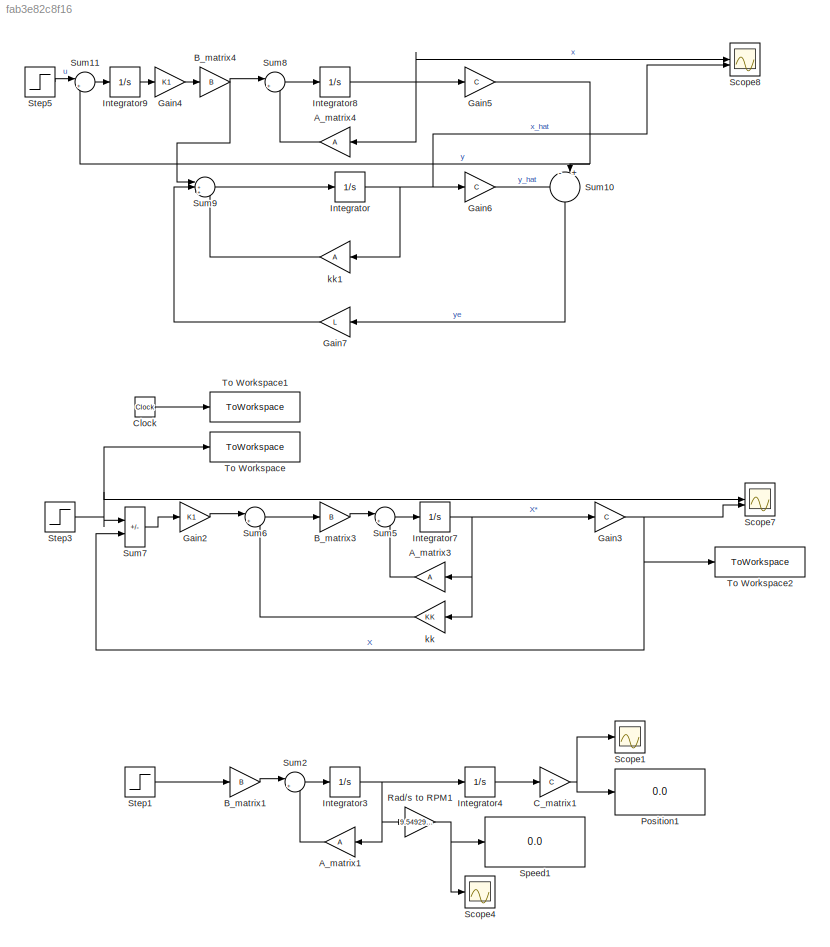
MODEL slx_fab3e82c8f16
KIND model
CONFIG AbsTol = auto
CONFIG EnableMultiTasking = off
CONFIG FixedStep = auto
CONFIG MaxStep = auto
CONFIG MinStep = auto
CONFIG RelTol = 1e-3
CONFIG SampleTimeConstraint = Unconstrained
CONFIG SolverName = VariableStepAuto
CONFIG StartTime = 0.0
CONFIG StopTime = 5
BLOCK [Gain] A_matrix1
  Gain = A
  Multiplication = Matrix(K*u)
  NameLocation = top
BLOCK [Gain] A_matrix3
  Gain = A
  Multiplication = Matrix(K*u)
  NameLocation = top
BLOCK [Gain] A_matrix4
  Gain = A
  Multiplication = Matrix(K*u)
  NameLocation = top
BLOCK [Gain] B_matrix1
  Gain = B
  Multiplication = Matrix(K*u)
BLOCK [Gain] B_matrix3
  Gain = B
  Multiplication = Matrix(K*u)
BLOCK [Gain] B_matrix4
  Gain = B
  Multiplication = Matrix(K*u)
BLOCK [Gain] C_matrix1
  Gain = C
  Multiplication = Matrix(K*u)
BLOCK [Clock] Clock
BLOCK [Gain] Gain2
  Gain = K1
BLOCK [Gain] Gain3
  Gain = C
  Multiplication = Matrix(K*u)
BLOCK [Gain] Gain4
  Gain = K1
  Multiplication = Matrix(K*u) (u vector)
BLOCK [Gain] Gain5
  Gain = C
  Multiplication = Matrix(K*u)
BLOCK [Gain] Gain6
  Gain = C
  Multiplication = Matrix(K*u)
BLOCK [Gain] Gain7
  Gain = L
  Multiplication = Matrix(K*u)
  NameLocation = top
BLOCK [Integrator] Integrator
BLOCK [Integrator] Integrator3
BLOCK [Integrator] Integrator4
BLOCK [Integrator] Integrator7
BLOCK [Integrator] Integrator8
  InitialCondition = 10
BLOCK [Integrator] Integrator9
BLOCK [Display] Position1
  Decimation = 1
BLOCK [Gain] Rad//s to RPM1
  Gain = 9.5492968
BLOCK [Scope] Scope1
  Floating = off
  NumInputPorts = 1
  ScopeSpecificationString = Simulink.scopes.TimeScopeBlockCfg('CurrentConfiguration', extmgr.ConfigurationSet(extmgr.Configuration('Core','General UI',true),extmgr.Configuration('Core','Source UI',true),extmgr.Configuration('Sources','WiredSimulink',true,'DataLoggingVariableName','ScopeData3'),extmgr.Configuration('Visuals','Time Domain',true,'SerializedDisplays',{struct('MinYLimReal','-79.11746','MaxYLimReal','712.05718','Y...<+1394ch>
BLOCK [Scope] Scope4
  Floating = off
  NumInputPorts = 1
  ScopeSpecificationString = Simulink.scopes.TimeScopeBlockCfg('CurrentConfiguration', extmgr.ConfigurationSet(extmgr.Configuration('Core','General UI',true,'FigureColor',[1 1 1]),extmgr.Configuration('Core','Source UI',true),extmgr.Configuration('Sources','WiredSimulink',true,'DataLoggingVariableName','ScopeData4'),extmgr.Configuration('Visuals','Time Domain',true,'SerializedDisplays',{struct('MinYLimReal','-759.23291','MaxY...<+1684ch>
BLOCK [Scope] Scope7
  Floating = off
  NumInputPorts = 2
  ScopeSpecificationString = Simulink.scopes.TimeScopeBlockCfg('CurrentConfiguration', extmgr.ConfigurationSet(extmgr.Configuration('Core','General UI',true,'FigureColor',[1 1 1]),extmgr.Configuration('Core','Source UI',true),extmgr.Configuration('Sources','WiredSimulink',true,'DataLoggingVariableName','ScopeData1'),extmgr.Configuration('Visuals','Time Domain',true,'SerializedDisplays',{struct('MinYLimReal','-2386.14511','Max...<+1696ch>
BLOCK [Scope] Scope8
  Floating = off
  NumInputPorts = 2
  ScopeSpecificationString = Simulink.scopes.TimeScopeBlockCfg('CurrentConfiguration', extmgr.ConfigurationSet(extmgr.Configuration('Core','General UI',true,'FigureColor',[1 1 1]),extmgr.Configuration('Core','Source UI',true),extmgr.Configuration('Sources','WiredSimulink',true,'DataLoggingVariableName','ScopeData1'),extmgr.Configuration('Visuals','Time Domain',true,'SerializedDisplays',{struct('MinYLimReal','-244.14187','MaxY...<+1677ch>
BLOCK [Display] Speed1
  Decimation = 1
BLOCK [Step] Step1
  After = 3
  SampleTime = 0
BLOCK [Step] Step3
  After = 500
  SampleTime = 0
BLOCK [Step] Step5
  NameLocation = left
  SampleTime = 0
BLOCK [Sum] Sum10
  Inputs = -||+
  NameLocation = left
BLOCK [Sum] Sum11
  Inputs = |+-
BLOCK [Sum] Sum2
  Inputs = |++
BLOCK [Sum] Sum5
  Inputs = |++
BLOCK [Sum] Sum6
  Inputs = |+-
BLOCK [Sum] Sum7
  IconShape = rectangular
  Inputs = |+-
BLOCK [Sum] Sum8
  Inputs = |++
BLOCK [Sum] Sum9
  Inputs = |+++
BLOCK [ToWorkspace] To Workspace
  FixptAsFi = on
  MaxDataPoints = inf
  SampleTime = -1
  VariableName = set_point
BLOCK [ToWorkspace] To Workspace1
  FixptAsFi = on
  MaxDataPoints = inf
  SampleTime = -1
  VariableName = time_data
BLOCK [ToWorkspace] To Workspace2
  FixptAsFi = on
  MaxDataPoints = inf
  SampleTime = -1
  VariableName = position
BLOCK [Gain] kk
  Gain = KK
  Multiplication = Matrix(K*u)
  NameLocation = top
BLOCK [Gain] kk1
  Gain = A
  Multiplication = Matrix(K*u)
  NameLocation = top
LINE A_matrix1:1 -> Sum2:2
LINE A_matrix3:1 -> Sum5:2
LINE A_matrix4:1 -> Sum8:2
LINE B_matrix1:1 -> Sum2:1
LINE B_matrix3:1 -> Sum5:1
NET B_matrix4:1 -> Sum8:1, Sum9:1
NET C_matrix1:1 -> Position1:1, Scope1:1
LINE Clock:1 -> To Workspace1:1
LINE Gain2:1 -> Sum6:1
NET Gain3:1 -> Scope7:2, Sum7:2, To Workspace2:1
LINE Gain4:1 -> B_matrix4:1
NET Gain5:1 -> Sum10:2, Sum11:2
LINE Gain6:1 -> Sum10:1
LINE Gain7:1 -> Sum9:2
NET Integrator3:1 -> A_matrix1:1, Integrator4:1, Rad//s to RPM1:1
LINE Integrator4:1 -> C_matrix1:1
NET Integrator7:1 -> A_matrix3:1, Gain3:1, kk:1
NET Integrator8:1 -> A_matrix4:1, Gain5:1, Scope8:1
LINE Integrator9:1 -> Gain4:1
NET Integrator:1 -> Gain6:1, Scope8:2, kk1:1
NET Rad//s to RPM1:1 -> Scope4:1, Speed1:1
LINE Step1:1 -> B_matrix1:1
NET Step3:1 -> Scope7:1, Sum7:1, To Workspace:1
LINE Step5:1 -> Sum11:1
LINE Sum10:1 -> Gain7:1
LINE Sum11:1 -> Integrator9:1
LINE Sum2:1 -> Integrator3:1
LINE Sum5:1 -> Integrator7:1
LINE Sum6:1 -> B_matrix3:1
LINE Sum7:1 -> Gain2:1
LINE Sum8:1 -> Integrator8:1
LINE Sum9:1 -> Integrator:1
LINE kk1:1 -> Sum9:3
LINE kk:1 -> Sum6:2
note: NET lines group one-source signal fan-out (src -> all destinations, sorted); 1:1 wires keep LINE
